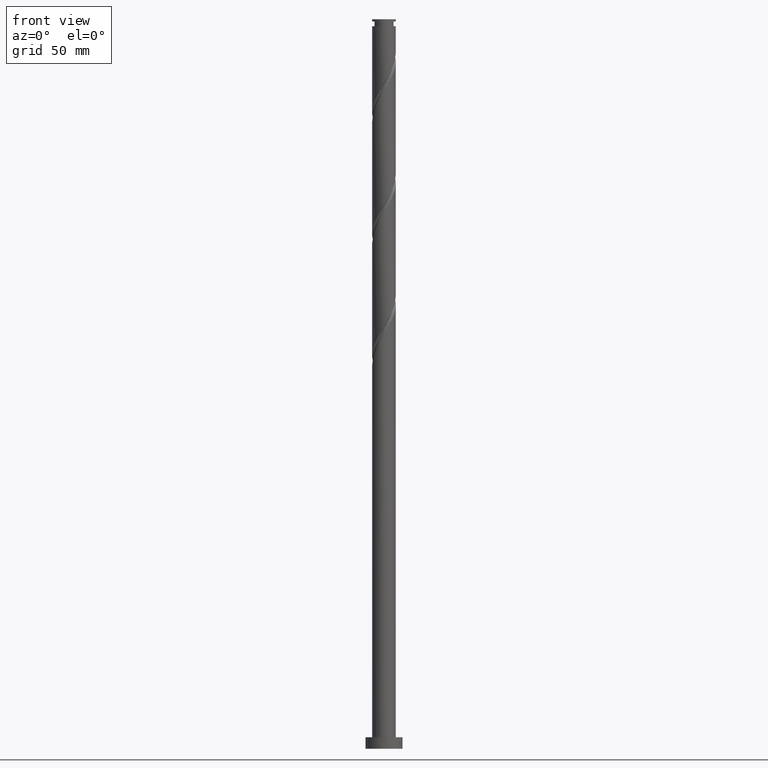
[diagram: clean part render]
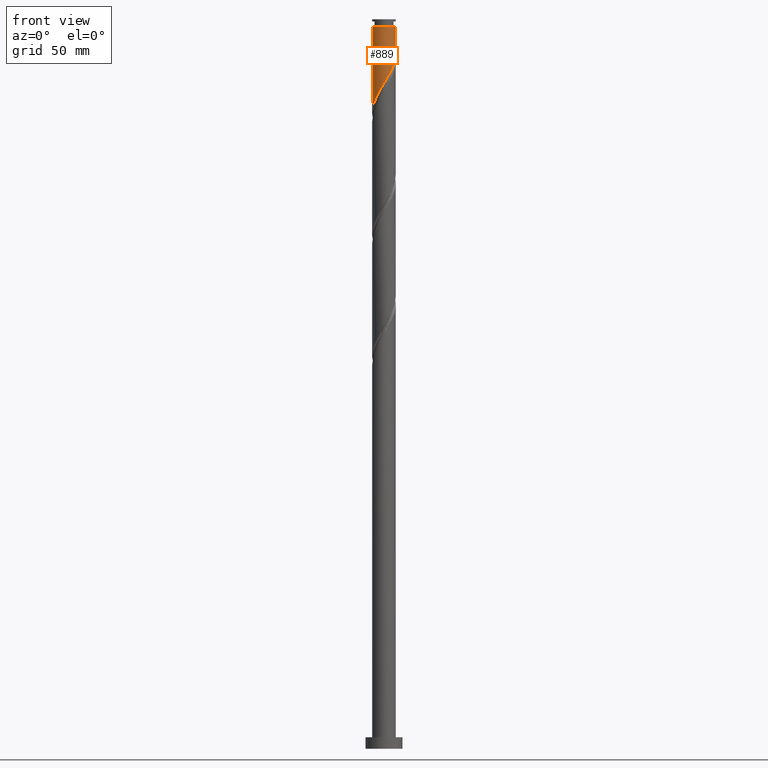
[diagram: same view with one face highlighted and labeled with its STEP entity id]
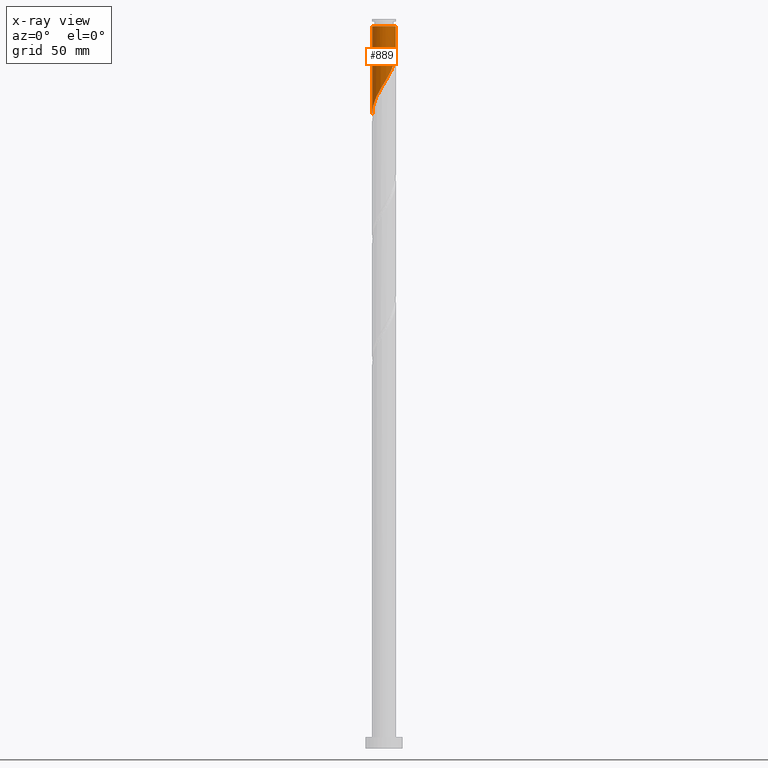
[diagram: x-ray of the same camera — body ghosted, the highlighted face saturated]
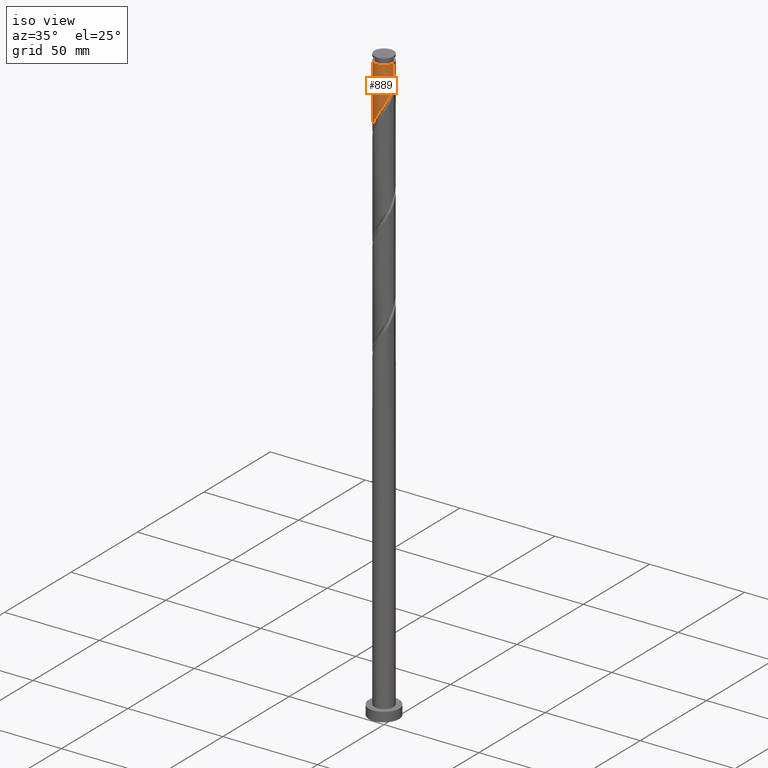
[diagram: same view with one face highlighted and labeled with its STEP entity id]
A machine part, front view. The second image highlights one B-rep face of the part: STEP entity #889.
The next image is the same camera in x-ray: the body ghosted, the highlighted face saturated — about 0% of this face is hidden behind the body in this view.
A second angle (iso view) of the same face is appended — the face is thin or edge-on in the first view.
In plain terms, the highlighted cylindrical surface (edge-blend (fillet) strip) has radius 5.1 mm, axis along (-0, -0, -1).
Its self-contained STEP definition (entity closure, byte-faithful):
#20 = AXIS2_PLACEMENT_3D ( 'NONE', #624, #1051, #160 ) ;
#76 = CARTESIAN_POINT ( 'NONE',  ( 4.883649677103470310, -1.578026539469511436, 297.8887158539479287 ) ) ;
#83 = CARTESIAN_POINT ( 'NONE',  ( 3.715336265440155383, -3.540688967227725303, 294.1387158539478150 ) ) ;
#160 = DIRECTION ( 'NONE',  ( -1.000000000000000000, 0.000000000000000000, 0.000000000000000000 ) ) ;
#200 = CARTESIAN_POINT ( 'NONE',  ( -5.099999999999974776, 0.000000000000000000, 311.9512158539478150 ) ) ;
#206 = CARTESIAN_POINT ( 'NONE',  ( -2.101601473113272167, -4.646856060629392715, 283.8262158539479856 ) ) ;
#215 = CARTESIAN_POINT ( 'NONE',  ( -4.278656598252051246, -2.834307612482652949, 279.1387158539477582 ) ) ;
#272 = CARTESIAN_POINT ( 'NONE',  ( -5.099999999999999645, 1.589594880042543830E-15, 274.2507329318539178 ) ) ;
#284 = VERTEX_POINT ( 'NONE', #1326 ) ;
#289 =( BOUNDED_CURVE ( )  B_SPLINE_CURVE ( 2, ( #1397, #1102, #1089, #76, #809, #660, #1698, #83, #1455, #678, #1687, #1269, #1157, #1901, #1860, #1709, #356, #708, #206, #855, #798, #1252, #1542, #215, #819, #1847, #525, #1005, #942, #516, #272 ),
 .UNSPECIFIED., .F., .T. ) 
 B_SPLINE_CURVE_WITH_KNOTS ( ( 3, 2, 2, 2, 2, 2, 2, 2, 2, 2, 2, 2, 2, 2, 2, 3 ),
 ( 0.3045303401299218615, 0.3125000000000000000, 0.3214285714285714524, 0.3303571428571428492, 0.3392857142857143016, 0.3482142857142856984, 0.3571428571428571508, 0.3660714285714285476, 0.3750000000000000000, 0.3839285714285714524, 0.3928571428571428492, 0.4017857142857143016, 0.4107142857142856984, 0.4196428571428571508, 0.4285714285714285476, 0.4295303401299216950 ),
 .UNSPECIFIED. ) 
 CURVE ( )  GEOMETRIC_REPRESENTATION_ITEM ( )  RATIONAL_B_SPLINE_CURVE ( ( 0.9079949616361990827, 0.9039886423360620205, 0.9090909090909288226, 0.9033747362666038061, 0.9090909090909288226, 0.9033747362666038061, 0.9090909090909288226, 0.9033747362666038061, 0.9090909090909288226, 0.9033747362666038061, 0.9090909090909288226, 0.9033747362666038061, 0.9090909090909288226, 0.9033747362666038061, 0.9090909090909288226, 0.9033747362666038061, 0.9090909090909288226, 0.9033747362666038061, 0.9090909090909288226, 0.9033747362666038061, 0.9090909090909288226, 0.9033747362666038061, 0.9090909090909288226, 0.9033747362666038061, 0.9090909090909288226, 0.9033747362666038061, 0.9090909090909288226, 0.9033747362666038061, 0.9090909090909288226, 0.9084770030214708303, 0.9079949616361993048 ) ) 
 REPRESENTATION_ITEM ( '' )  );
#330 = ORIENTED_EDGE ( 'NONE', *, *, #1088, .F. ) ;
#345 = EDGE_CURVE ( 'NONE', #1590, #284, #755, .T. ) ;
#356 = CARTESIAN_POINT ( 'NONE',  ( -1.014887185848755813, -4.998000000000000220, 285.7012158539479287 ) ) ;
#361 = AXIS2_PLACEMENT_3D ( 'NONE', #1430, #1140, #1595 ) ;
#409 = FACE_OUTER_BOUND ( 'NONE', #1442, .T. ) ;
#422 = VERTEX_POINT ( 'NONE', #1793 ) ;
#502 = ORIENTED_EDGE ( 'NONE', *, *, #345, .F. ) ;
#516 = CARTESIAN_POINT ( 'NONE',  ( -5.099999999999998757, -0.06136777554861071876, 274.3510956200790361 ) ) ;
#525 = CARTESIAN_POINT ( 'NONE',  ( -4.943385448754844091, -1.254169169226730052, 276.3262158539478150 ) ) ;
#540 = ORIENTED_EDGE ( 'NONE', *, *, #948, .T. ) ;
#549 = ORIENTED_EDGE ( 'NONE', *, *, #1846, .T. ) ;
#571 = VERTEX_POINT ( 'NONE', #200 ) ;
#624 = CARTESIAN_POINT ( 'NONE',  ( 0.000000000000000000, 0.000000000000000000, 311.9512158539478150 ) ) ;
#660 = CARTESIAN_POINT ( 'NONE',  ( 4.410062444155315120, -2.625176406757034897, 296.0137158539478719 ) ) ;
#678 = CARTESIAN_POINT ( 'NONE',  ( 2.834307612482652949, -4.278656598252052135, 292.2637158539477014 ) ) ;
#708 = CARTESIAN_POINT ( 'NONE',  ( -1.578026539469510992, -4.883649677103470310, 284.7637158539478150 ) ) ;
#755 = LINE ( 'NONE', #1061, #757 ) ;
#757 = VECTOR ( 'NONE', #1205, 1000.000000000000000 ) ;
#798 = CARTESIAN_POINT ( 'NONE',  ( -3.082932686992380766, -4.062699354797734586, 281.9512158539477582 ) ) ;
#809 = CARTESIAN_POINT ( 'NONE',  ( 4.646856060629392715, -2.101601473113273055, 296.9512158539477582 ) ) ;
#819 = CARTESIAN_POINT ( 'NONE',  ( -4.540365559789020899, -2.322731276640010556, 278.2012158539478150 ) ) ;
#840 = CYLINDRICAL_SURFACE ( 'NONE', #361, 5.099999999999999645 ) ;
#855 = CARTESIAN_POINT ( 'NONE',  ( -2.625176406757034897, -4.410062444155316008, 282.8887158539478719 ) ) ;
#889 = ADVANCED_FACE ( 'NONE', ( #409 ), #840, .T. ) ;
#942 = CARTESIAN_POINT ( 'NONE',  ( -5.098523349540114324, -0.1227177827140458616, 274.4512158539478150 ) ) ;
#948 = EDGE_CURVE ( 'NONE', #571, #422, #1881, .T. ) ;
#1005 = CARTESIAN_POINT ( 'NONE',  ( -5.084696376183699407, -0.6971833976560917190, 275.3887158539478150 ) ) ;
#1051 = DIRECTION ( 'NONE',  ( -0.000000000000000000, -0.000000000000000000, -1.000000000000000000 ) ) ;
#1061 = CARTESIAN_POINT ( 'NONE',  ( 5.099999999999999645, 6.245698675651500839E-16, 315.0000000000000000 ) ) ;
#1088 = EDGE_CURVE ( 'NONE', #284, #422, #289, .T. ) ;
#1089 = CARTESIAN_POINT ( 'NONE',  ( 4.998000000000000220, -1.014887185848756035, 298.8262158539479287 ) ) ;
#1102 = CARTESIAN_POINT ( 'NONE',  ( 5.100000000000001421, -0.5125692857821905202, 299.6624618528902602 ) ) ;
#1140 = DIRECTION ( 'NONE',  ( -0.000000000000000000, -0.000000000000000000, -1.000000000000000000 ) ) ;
#1157 = CARTESIAN_POINT ( 'NONE',  ( 1.254169169226730052, -4.943385448754844091, 289.4512158539477582 ) ) ;
#1186 = CARTESIAN_POINT ( 'NONE',  ( 5.099999999999974776, 6.245698675651486048E-16, 311.9512158539478150 ) ) ;
#1205 = DIRECTION ( 'NONE',  ( -0.000000000000000000, -0.000000000000000000, -1.000000000000000000 ) ) ;
#1228 = VECTOR ( 'NONE', #1586, 1000.000000000000000 ) ;
#1252 = CARTESIAN_POINT ( 'NONE',  ( -3.540688967227725303, -3.715336265440155383, 281.0137158539478150 ) ) ;
#1269 = CARTESIAN_POINT ( 'NONE',  ( 1.811154940797367940, -4.802074521325987888, 290.3887158539478719 ) ) ;
#1326 = CARTESIAN_POINT ( 'NONE',  ( 5.099999999999999645, -2.238866028228934650E-15, 300.5007329318538609 ) ) ;
#1397 = CARTESIAN_POINT ( 'NONE',  ( 5.099999999999998757, -2.238866028228934650E-15, 300.5007329318538609 ) ) ;
#1430 = CARTESIAN_POINT ( 'NONE',  ( 0.000000000000000000, 0.000000000000000000, 315.0000000000000000 ) ) ;
#1442 = EDGE_LOOP ( 'NONE', ( #502, #549, #540, #330 ) ) ;
#1455 = CARTESIAN_POINT ( 'NONE',  ( 3.274821938961404388, -3.909672782739889385, 293.2012158539478150 ) ) ;
#1517 = CIRCLE ( 'NONE', #20, 5.099999999999974776 ) ;
#1542 = CARTESIAN_POINT ( 'NONE',  ( -3.909672782739889385, -3.274821938961404388, 280.0762158539478150 ) ) ;
#1586 = DIRECTION ( 'NONE',  ( -0.000000000000000000, -0.000000000000000000, -1.000000000000000000 ) ) ;
#1590 = VERTEX_POINT ( 'NONE', #1186 ) ;
#1595 = DIRECTION ( 'NONE',  ( -1.000000000000000000, 0.000000000000000000, 0.000000000000000000 ) ) ;
#1607 = CARTESIAN_POINT ( 'NONE',  ( -5.099999999999999645, 0.000000000000000000, 315.0000000000000000 ) ) ;
#1687 = CARTESIAN_POINT ( 'NONE',  ( 2.322731276640010112, -4.540365559789020899, 291.3262158539478719 ) ) ;
#1698 = CARTESIAN_POINT ( 'NONE',  ( 4.062699354797734586, -3.082932686992380766, 295.0762158539478719 ) ) ;
#1709 = CARTESIAN_POINT ( 'NONE',  ( -0.4517478322280007452, -5.112350322896528354, 286.6387158539477582 ) ) ;
#1793 = CARTESIAN_POINT ( 'NONE',  ( -5.099999999999999645, 1.589594880042543830E-15, 274.2507329318539178 ) ) ;
#1846 = EDGE_CURVE ( 'NONE', #1590, #571, #1517, .T. ) ;
#1847 = CARTESIAN_POINT ( 'NONE',  ( -4.802074521325987888, -1.811154940797367940, 277.2637158539478719 ) ) ;
#1860 = CARTESIAN_POINT ( 'NONE',  ( 0.1227177827140454591, -5.098523349540114324, 287.5762158539478150 ) ) ;
#1881 = LINE ( 'NONE', #1607, #1228 ) ;
#1901 = CARTESIAN_POINT ( 'NONE',  ( 0.6971833976560911639, -5.084696376183699407, 288.5137158539479287 ) ) ;